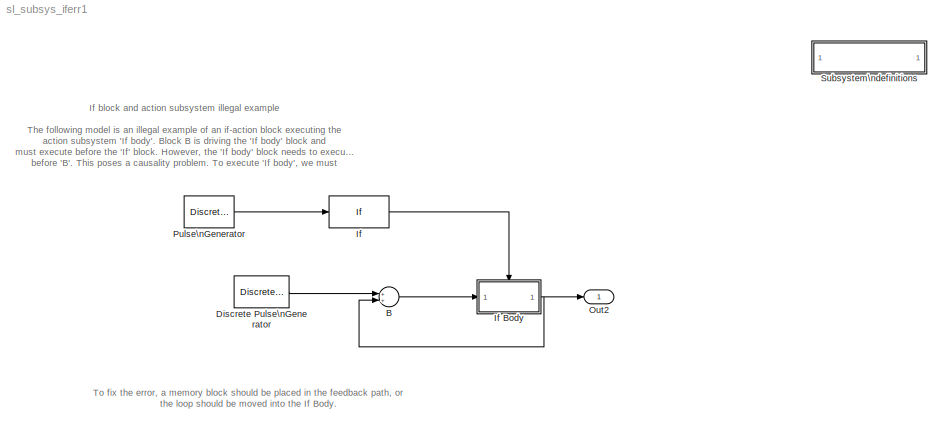
MODEL sl_subsys_iferr1
KIND model
BLOCK [SubSystem]  Subsystem\ndefinitions
  MaskDisplay = disp('Subsystem\\ndefinitions')\n\n
  MaskIconFrame = on
  MaskIconOpaque = on
  MaskIconRotate = none
  MaskIconUnits = autoscale
  MinAlgLoopOccurrences = off
  OpenFcn = helpview([matlabroot,'/toolbox/simulink/simdemos/sl_subsys_definitions.html']);
  Ports = []
  PropExecContextAcrossSSBoundary = on
  RTWSystemCode = Auto
  TreatAsAtomicUnit = off
BLOCK [Sum] B
  Ports = [2, 1]
BLOCK [DiscretePulseGenerator] Discrete Pulse\nGenerator
  Ports = [0, 1]
BLOCK [If] If
  Ports = [1, 1]
  ShowElse = off
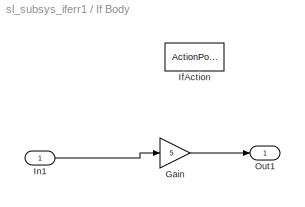
BLOCK [SubSystem] If Body
  MinAlgLoopOccurrences = off
  Ports = [1, 1, 0, 0, 0, 0, 0, 1]
  PropExecContextAcrossSSBoundary = on
  RTWSystemCode = Auto
  TreatAsAtomicUnit = on
BLOCK [Gain] If Body/Gain
  Gain = 5
BLOCK [ActionPort] If Body/IfAction
  ActionType = then
BLOCK [Inport] If Body/In1
  IconDisplay = Port number
  LatchInput = off
  Port = 1
BLOCK [Outport] If Body/Out1
  IconDisplay = Port number
BLOCK [Outport] Out2
  IconDisplay = Port number
BLOCK [DiscretePulseGenerator] Pulse\nGenerator
  Ports = [0, 1]
ANNOTATION (root): If block and action subsystem illegal example\n\nThe following model is an illegal example of an if-action block executing the\naction subsystem 'If body'. Block B is driving the 'If body' block and \nmust execute before the 'If' block. However, the 'If body' block needs to execute \nbefore 'B'. This poses a causality problem. To execute 'If body', we must \nfirst execute 'If', before 'B'. However...<+60ch>
ANNOTATION (root): To fix the error, a memory block should be placed in the feedback path, or\nthe loop should be moved into the If Body.
LINE B:1 -> If Body:1
LINE Discrete Pulse\nGenerator:1 -> B:1
LINE If Body/Gain:1 -> If Body/Out1:1
LINE If Body/In1:1 -> If Body/Gain:1
NET If Body:1 -> B:2, Out2:1
LINE If:1 -> If Body:ifaction
LINE Pulse\nGenerator:1 -> If:1
note: NET lines group one-source signal fan-out (src -> all destinations, sorted); 1:1 wires keep LINE
